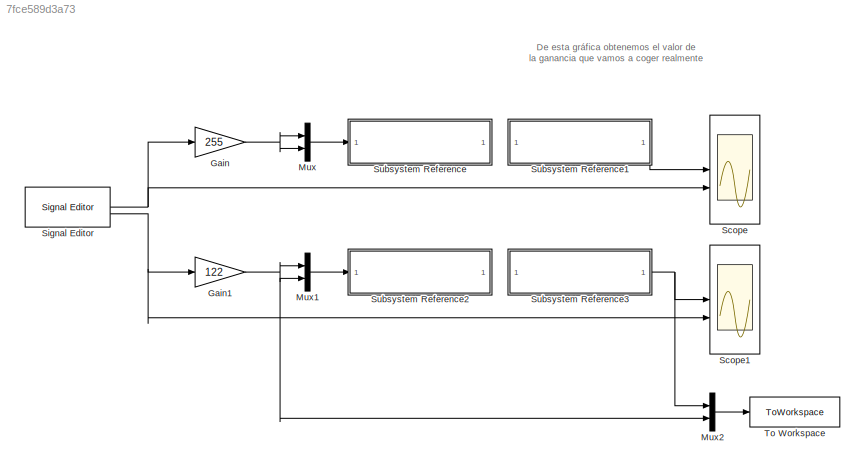
MODEL slx_7fce589d3a73
KIND model
CONFIG AbsTol = auto
CONFIG EnableMultiTasking = on
CONFIG FixedStep = 0.01
CONFIG MaxStep = auto
CONFIG MinStep = auto
CONFIG RelTol = 1e-3
CONFIG SampleTimeConstraint = Unconstrained
CONFIG SolverName = FixedStepDiscrete
CONFIG StartTime = 0.0
CONFIG StopTime = 10
BLOCK [Gain] Gain
  Commented = on
  Gain = 255
BLOCK [Gain] Gain1
  Gain = 122
BLOCK [Mux] Mux
  Commented = on
  DisplayOption = bar
  Inputs = 2
BLOCK [Mux] Mux1
  DisplayOption = bar
  Inputs = 2
BLOCK [Mux] Mux2
  DisplayOption = bar
  Inputs = 2
BLOCK [Scope] Scope
  Commented = on
  Floating = off
  NumInputPorts = 2
  ScopeSpecificationString = Simulink.scopes.TimeScopeBlockCfg('CurrentConfiguration', extmgr.ConfigurationSet(extmgr.Configuration('Core','General UI',true),extmgr.Configuration('Core','Source UI',true),extmgr.Configuration('Sources','WiredSimulink',true),extmgr.Configuration('Visuals','Time Domain',true,'SerializedDisplays',{struct('MinYLimReal','-1.25','MaxYLimReal','1.25','YLabelReal','','MinYLimMag','0.00000','MaxYLimMag...<+1818ch>
BLOCK [Scope] Scope1
  Floating = off
  NumInputPorts = 2
  ScopeSpecificationString = Simulink.scopes.TimeScopeBlockCfg('CurrentConfiguration', extmgr.ConfigurationSet(extmgr.Configuration('Core','General UI',true),extmgr.Configuration('Core','Source UI',true),extmgr.Configuration('Sources','WiredSimulink',true,'DataLoggingVariableName','ScopeData1'),extmgr.Configuration('Visuals','Time Domain',true,'SerializedDisplays',{struct('MinYLimReal','-1.25','MaxYLimReal','1.25','YLabelReal...<+1546ch>
BLOCK [Reference] Signal Editor  REF=SignalEditorBlockLib/Signal Editor
  LibrarySourceBlock = simulink/Sources/Signal Editor
  SourceBlock = SignalEditorBlockLib/Signal Editor
  SourceType = SignalEditor
  UserDataPersistent = on
BLOCK [SubSystem] Subsystem Reference
  Commented = on
  ReferencedSubsystem = SubsistemaMotores
BLOCK [SubSystem] Subsystem Reference1
  Commented = on
  ReferencedSubsystem = Encoder
BLOCK [SubSystem] Subsystem Reference2
  ReferencedSubsystem = SubsistemaMotores
BLOCK [SubSystem] Subsystem Reference3
  ReferencedSubsystem = Encoder
BLOCK [ToWorkspace] To Workspace
  FixptAsFi = on
  MaxDataPoints = inf
  SampleTime = 0.01
  Save2DSignal = 2-D array (concatenate along first dimension)
  VariableName = Caracterizacion
ANNOTATION (root): De esta gráfica obtenemos el valor de la ganancia que vamos a coger realmente
NET Gain1:1 -> Mux1:1, Mux1:2, Mux2:2
NET Gain:1 -> Mux:1, Mux:2
LINE Mux1:1 -> Subsystem Reference2:1
LINE Mux2:1 -> To Workspace:1
LINE Mux:1 -> Subsystem Reference:1
NET Signal Editor:1 -> Gain:1, Scope:2
NET Signal Editor:2 -> Gain1:1, Scope1:2
LINE Subsystem Reference1:1 -> Scope:1
NET Subsystem Reference3:1 -> Mux2:1, Scope1:1
note: NET lines group one-source signal fan-out (src -> all destinations, sorted); 1:1 wires keep LINE
